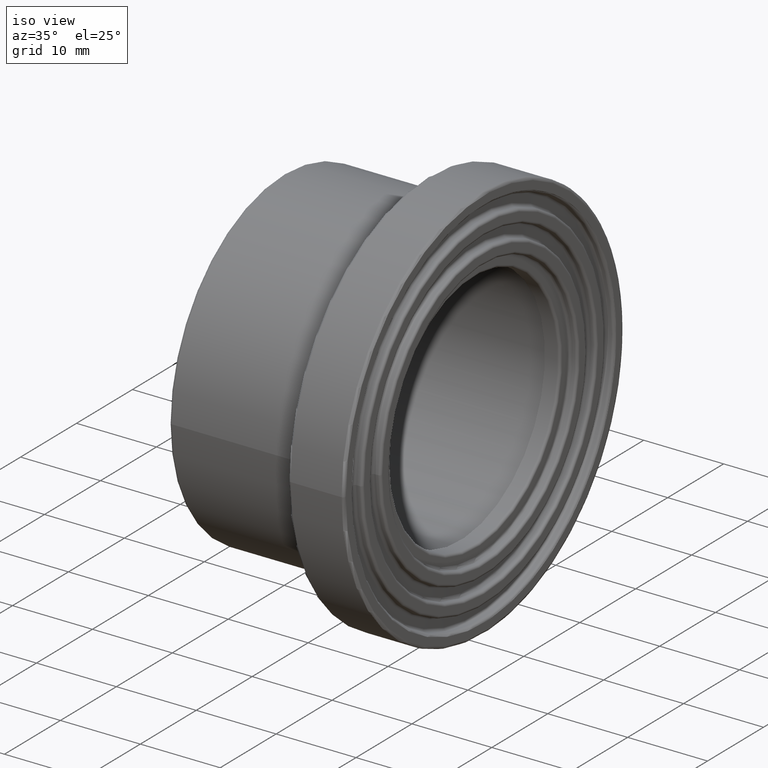
[diagram: clean part render]
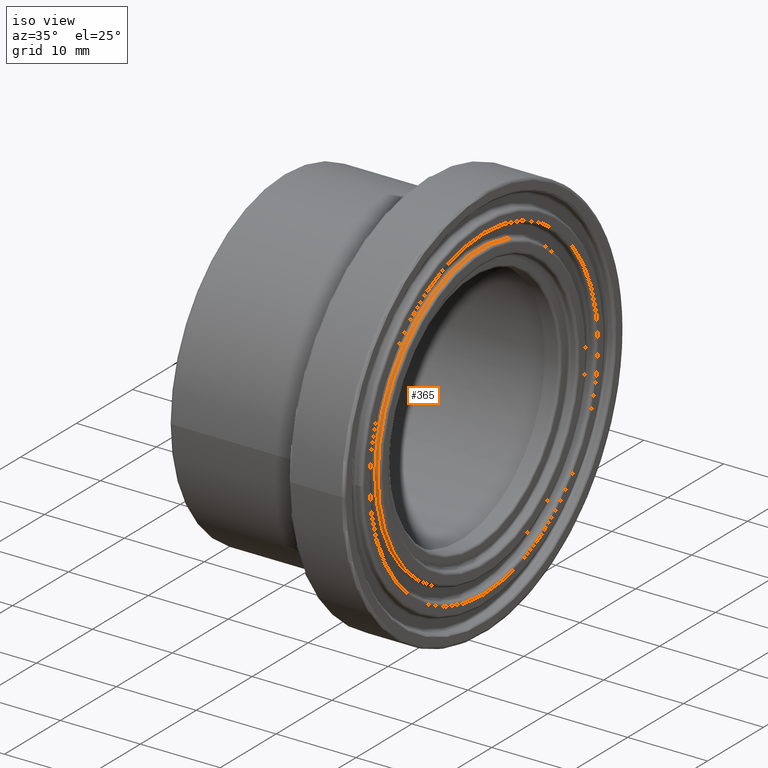
[diagram: same view with one face highlighted and labeled with its STEP entity id]
A machine part, iso view. The second image highlights one B-rep face of the part: STEP entity #365.
In plain terms, the highlighted cylindrical surface (bore or boss wall) has radius 18.4667 mm, axis along (-1, 0, 0).
Its self-contained STEP definition (entity closure, byte-faithful):
#20=CYLINDRICAL_SURFACE('',#423,18.4666666666667);
#53=FACE_BOUND('',#140,.T.);
#86=FACE_OUTER_BOUND('',#139,.T.);
#139=EDGE_LOOP('',(#304));
#140=EDGE_LOOP('',(#305));
#187=CIRCLE('',#422,18.4666666666667);
#188=CIRCLE('',#424,18.4666666666667);
#220=VERTEX_POINT('',#645);
#221=VERTEX_POINT('',#648);
#253=EDGE_CURVE('',#220,#220,#187,.T.);
#254=EDGE_CURVE('',#221,#221,#188,.T.);
#304=ORIENTED_EDGE('',*,*,#254,.F.);
#305=ORIENTED_EDGE('',*,*,#253,.F.);
#365=ADVANCED_FACE('',(#86,#53),#20,.T.);
#422=AXIS2_PLACEMENT_3D('',#646,#532,#533);
#423=AXIS2_PLACEMENT_3D('',#647,#534,#535);
#424=AXIS2_PLACEMENT_3D('',#649,#536,#537);
#532=DIRECTION('center_axis',(1.,0.,0.));
#533=DIRECTION('ref_axis',(0.,1.,6.12323399573677E-17));
#534=DIRECTION('center_axis',(-1.,0.,0.));
#535=DIRECTION('ref_axis',(0.,-1.,0.));
#536=DIRECTION('center_axis',(-1.,0.,0.));
#537=DIRECTION('ref_axis',(0.,1.,6.12323399573677E-17));
#645=CARTESIAN_POINT('',(24.68,-18.4666666666667,-3.39227163363817E-15));
#646=CARTESIAN_POINT('Origin',(24.68,0.,0.));
#647=CARTESIAN_POINT('Origin',(24.475,0.,0.));
#648=CARTESIAN_POINT('',(24.27,-18.4666666666667,1.13075721121272E-15));
#649=CARTESIAN_POINT('Origin',(24.27,0.,0.));